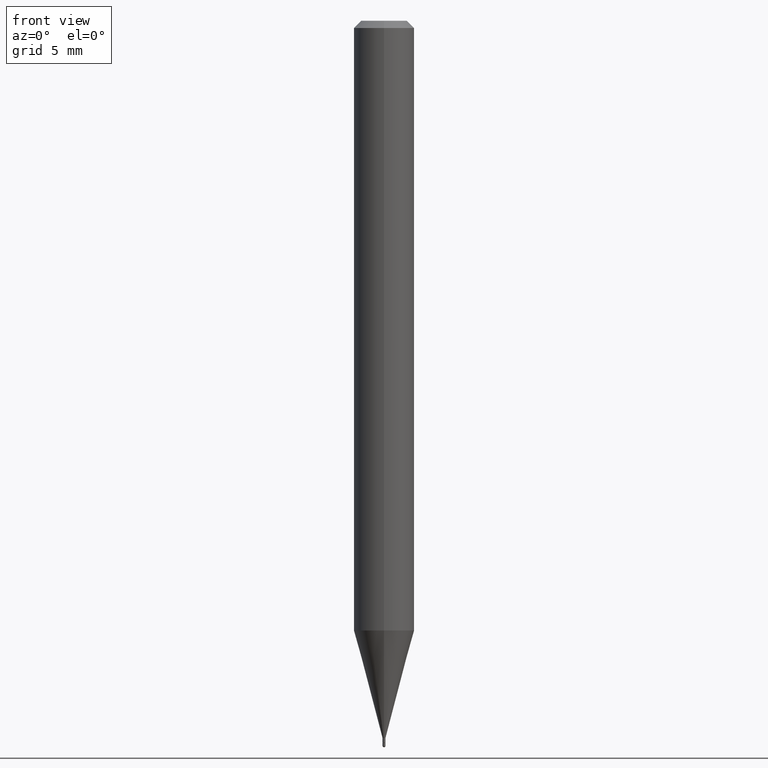
[diagram: clean part render]
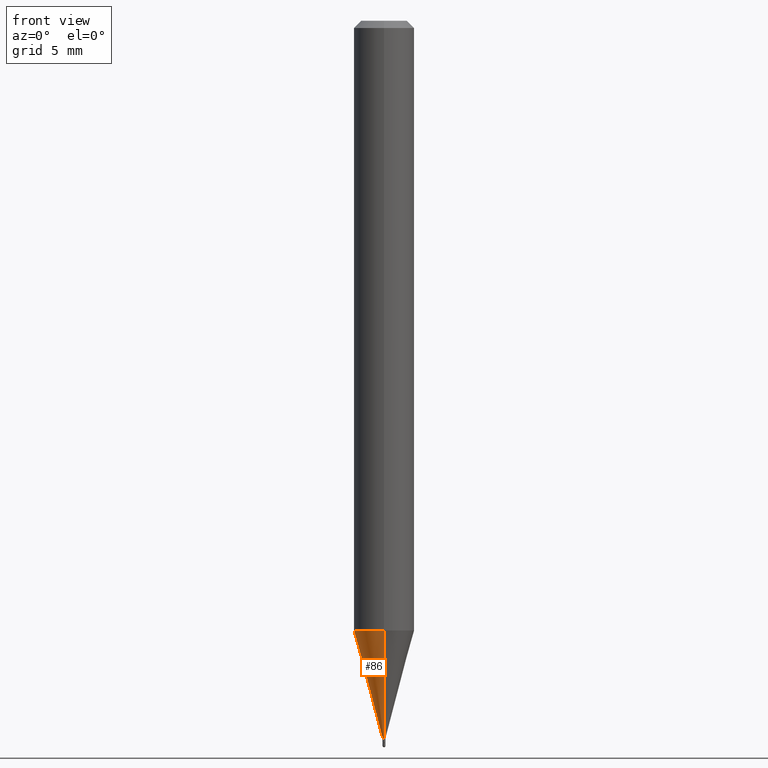
[diagram: same view with one face highlighted and labeled with its STEP entity id]
A machine part, front view. The second image highlights one B-rep face of the part: STEP entity #86.
In plain terms, the highlighted conical surface has half-angle 15 deg.
Its self-contained STEP definition (entity closure, byte-faithful):
#11 = CIRCLE ( 'NONE', #178, 0.06250000000000000000 ) ;
#26 = CARTESIAN_POINT ( 'NONE',  ( -4.364351673553607559E-16, -0.06250000000000438538, -1.258942976949652293 ) ) ;
#44 = VECTOR ( 'NONE', #398, 39.37007874015748143 ) ;
#46 = DIRECTION ( 'NONE',  ( -2.445479479011041062E-29, 3.491466054748990607E-15, 1.000000000000000000 ) ) ;
#56 = ORIENTED_EDGE ( 'NONE', *, *, #122, .F. ) ;
#66 = ORIENTED_EDGE ( 'NONE', *, *, #305, .F. ) ;
#75 = VECTOR ( 'NONE', #149, 39.37007874015748143 ) ;
#86 = ADVANCED_FACE ( 'NONE', ( #405 ), #457, .T. ) ;
#100 = CARTESIAN_POINT ( 'NONE',  ( 4.440892098500932831E-16, 0.06249999999999560074, -1.258942976949652737 ) ) ;
#122 = EDGE_CURVE ( 'NONE', #238, #440, #190, .T. ) ;
#141 = CARTESIAN_POINT ( 'NONE',  ( 3.621755108415351772E-29, -5.170861227083255778E-15, -1.481000000000000094 ) ) ;
#149 = DIRECTION ( 'NONE',  ( 1.839019923739601104E-15, 0.2588190451025250693, 0.9659258262890670910 ) ) ;
#150 = VERTEX_POINT ( 'NONE', #26 ) ;
#175 = CARTESIAN_POINT ( 'NONE',  ( 2.327027459614661497E-16, 0.002999999999994752090, -1.481000000000000094 ) ) ;
#178 = AXIS2_PLACEMENT_3D ( 'NONE', #179, #479, #318 ) ;
#179 = CARTESIAN_POINT ( 'NONE',  ( 3.078719215375445112E-29, -4.395556668884352464E-15, -1.258942976949652515 ) ) ;
#187 = AXIS2_PLACEMENT_3D ( 'NONE', #141, #46, #264 ) ;
#190 = LINE ( 'NONE', #501, #75 ) ;
#216 = VERTEX_POINT ( 'NONE', #278 ) ;
#221 = EDGE_CURVE ( 'NONE', #238, #216, #228, .T. ) ;
#228 = CIRCLE ( 'NONE', #187, 0.002999999999999923735 ) ;
#238 = VERTEX_POINT ( 'NONE', #175 ) ;
#264 = DIRECTION ( 'NONE',  ( -6.982962677686264344E-15, -1.000000000000000000, 0.000000000000000000 ) ) ;
#265 = ORIENTED_EDGE ( 'NONE', *, *, #321, .T. ) ;
#278 = CARTESIAN_POINT ( 'NONE',  ( -2.094888803302204488E-17, -0.003000000000005094512, -1.481000000000000094 ) ) ;
#286 = AXIS2_PLACEMENT_3D ( 'NONE', #403, #332, #503 ) ;
#298 = ORIENTED_EDGE ( 'NONE', *, *, #221, .T. ) ;
#305 = EDGE_CURVE ( 'NONE', #440, #150, #11, .T. ) ;
#318 = DIRECTION ( 'NONE',  ( -6.982962677686265922E-15, -1.000000000000000000, 4.370956789862821150E-15 ) ) ;
#321 = EDGE_CURVE ( 'NONE', #216, #150, #491, .T. ) ;
#332 = DIRECTION ( 'NONE',  ( -2.445479479011041062E-29, 3.491466054748990607E-15, 1.000000000000000000 ) ) ;
#398 = DIRECTION ( 'NONE',  ( -1.807323732225330928E-15, -0.2588190451025182970, 0.9659258262890689783 ) ) ;
#403 = CARTESIAN_POINT ( 'NONE',  ( 3.621755108415351772E-29, -5.170861227083255778E-15, -1.481000000000000094 ) ) ;
#405 = FACE_OUTER_BOUND ( 'NONE', #407, .T. ) ;
#407 = EDGE_LOOP ( 'NONE', ( #56, #298, #265, #66 ) ) ;
#440 = VERTEX_POINT ( 'NONE', #100 ) ;
#448 = CARTESIAN_POINT ( 'NONE',  ( -2.094888803302204488E-17, -0.003000000000005094512, -1.481000000000000094 ) ) ;
#457 = CONICAL_SURFACE ( 'NONE', #286, 0.002999999999999923735, 0.2617993877991502960 ) ;
#479 = DIRECTION ( 'NONE',  ( -2.445479479011041062E-29, 3.491466054748990607E-15, 1.000000000000000000 ) ) ;
#491 = LINE ( 'NONE', #448, #44 ) ;
#501 = CARTESIAN_POINT ( 'NONE',  ( 2.131628207283867732E-17, 0.002999999999994752958, -1.481000000000000094 ) ) ;
#503 = DIRECTION ( 'NONE',  ( -6.982962677686264344E-15, -1.000000000000000000, 0.000000000000000000 ) ) ;